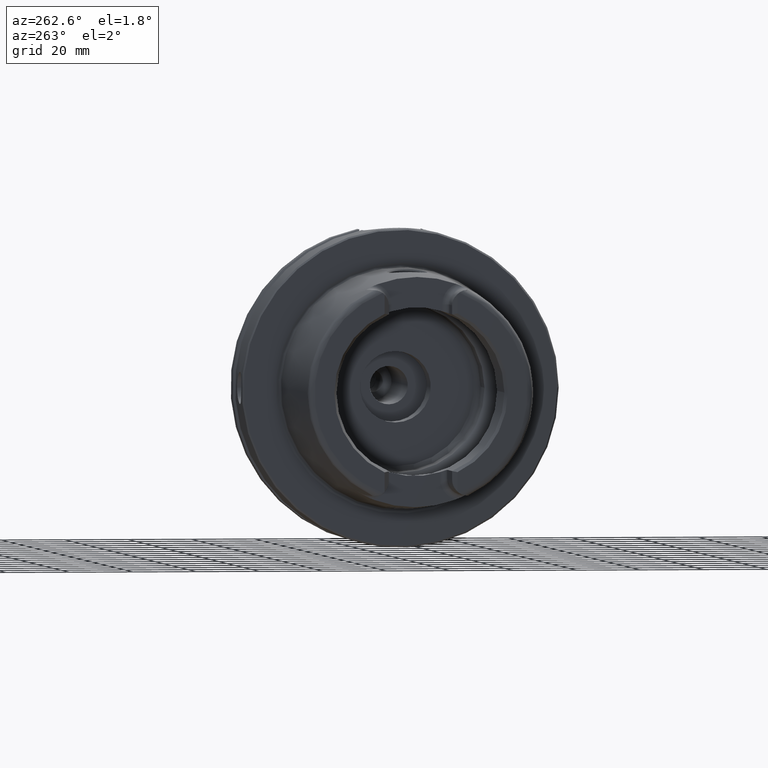
[diagram: clean part render]
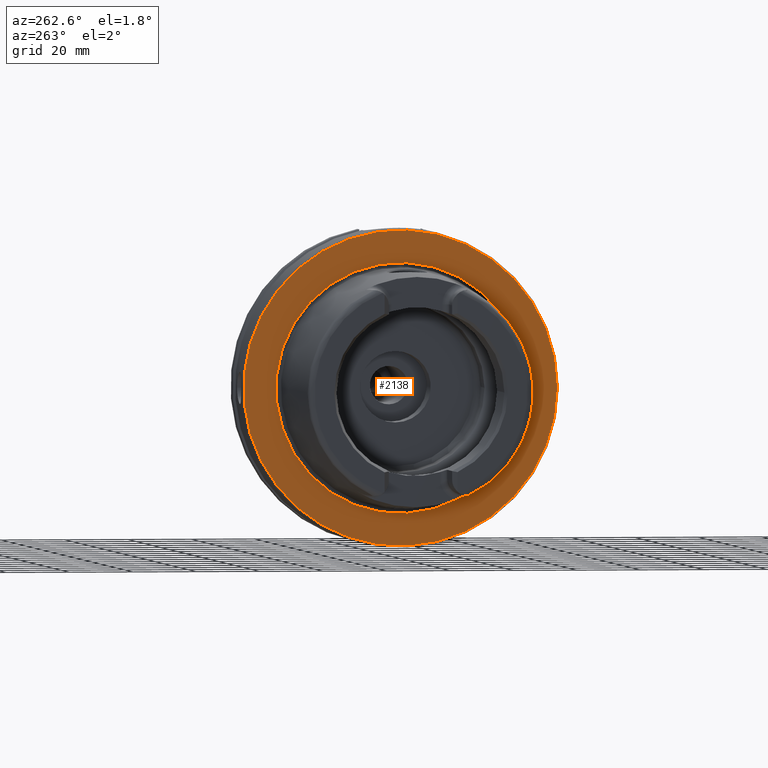
[diagram: same view with one face highlighted and labeled with its STEP entity id]
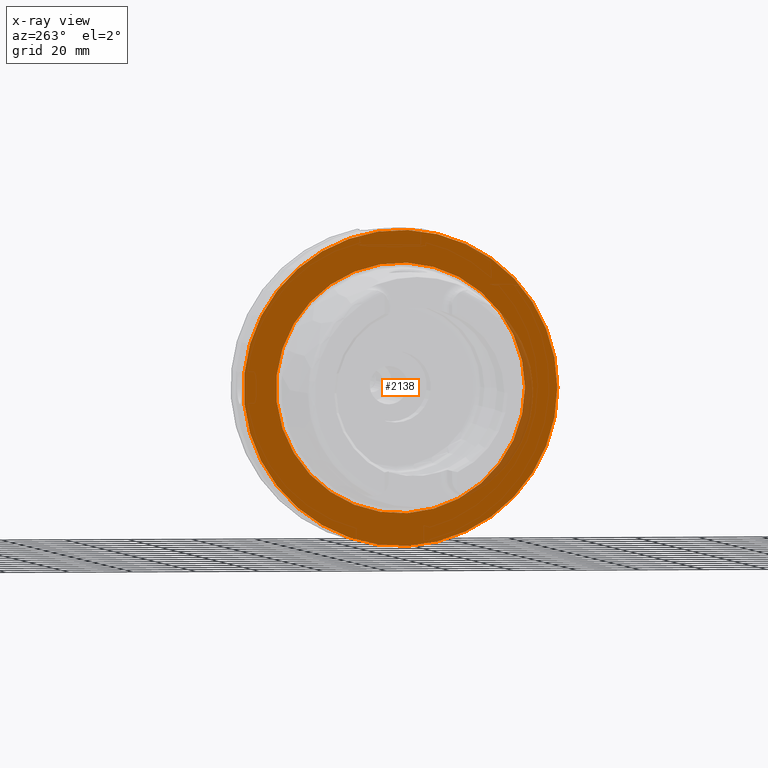
[diagram: x-ray of the same camera — body ghosted, the highlighted face saturated]
A machine part, auxiliary view. The second image highlights one B-rep face of the part: STEP entity #2138.
The next image is the same camera in x-ray: the body ghosted, the highlighted face saturated — about 5% of this face is hidden behind the body in this view.
In plain terms, the highlighted planar face has unit normal (-1, 0, 0).
Its self-contained STEP definition (entity closure, byte-faithful):
#98=FACE_BOUND('',#461,.T.);
#135=PLANE('',#2419);
#324=FACE_OUTER_BOUND('',#460,.T.);
#460=EDGE_LOOP('',(#1960));
#461=EDGE_LOOP('',(#1961));
#815=CIRCLE('',#2418,39.2747800249997);
#816=CIRCLE('',#2420,49.5);
#1033=VERTEX_POINT('',#4594);
#1034=VERTEX_POINT('',#4598);
#1347=EDGE_CURVE('',#1033,#1033,#815,.T.);
#1348=EDGE_CURVE('',#1034,#1034,#816,.T.);
#1960=ORIENTED_EDGE('',*,*,#1348,.F.);
#1961=ORIENTED_EDGE('',*,*,#1347,.T.);
#2138=ADVANCED_FACE('',(#324,#98),#135,.T.);
#2418=AXIS2_PLACEMENT_3D('',#4596,#3039,#3040);
#2419=AXIS2_PLACEMENT_3D('',#4597,#3041,#3042);
#2420=AXIS2_PLACEMENT_3D('',#4599,#3043,#3044);
#3039=DIRECTION('center_axis',(1.,0.,0.));
#3040=DIRECTION('ref_axis',(0.,0.,-1.));
#3041=DIRECTION('center_axis',(-1.,0.,0.));
#3042=DIRECTION('ref_axis',(0.,0.,1.));
#3043=DIRECTION('center_axis',(1.,0.,0.));
#3044=DIRECTION('ref_axis',(0.,0.,-1.));
#4594=CARTESIAN_POINT('',(-1.04950770296597E-15,-39.2747800249997,-4.80977336448322E-15));
#4596=CARTESIAN_POINT('Origin',(0.,0.,0.));
#4597=CARTESIAN_POINT('Origin',(0.,49.5,0.));
#4598=CARTESIAN_POINT('',(1.28369537222284E-15,-49.5,-6.0620016557794E-15));
#4599=CARTESIAN_POINT('Origin',(0.,0.,0.));